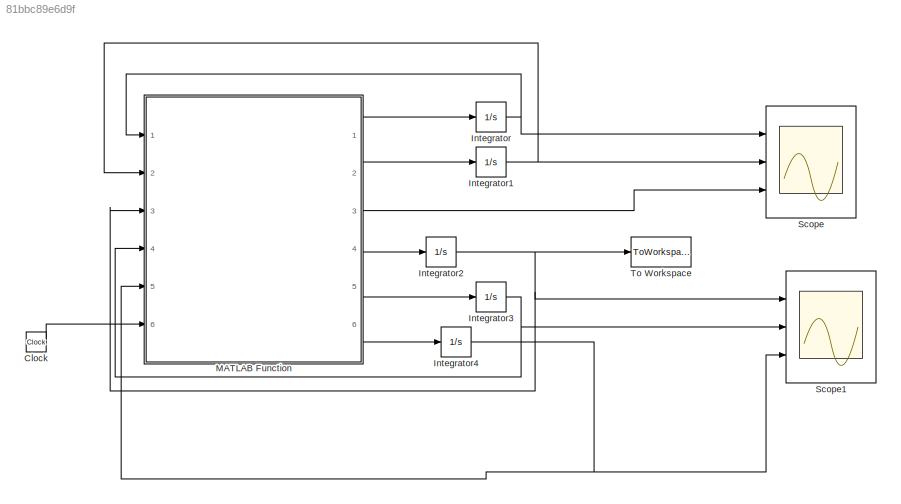
MODEL slx_81bbc89e6d9f
KIND model
CONFIG AbsTol = auto
CONFIG FixedStep = auto
CONFIG MaxStep = auto
CONFIG MinStep = auto
CONFIG RelTol = 1e-3
CONFIG SampleTimeConstraint = Unconstrained
CONFIG Solver = VariableStepAuto
CONFIG SolverMode = Auto
CONFIG SolverName = VariableStepAuto
CONFIG StartTime = 0.0
CONFIG StopTime = 100
BLOCK [Clock] Clock
BLOCK [Integrator] Integrator
  InitialCondition = [0;0]
  Ports = [1, 1]
BLOCK [Integrator] Integrator1
  InitialCondition = [0;0]
  Ports = [1, 1]
BLOCK [Integrator] Integrator2
  InitialCondition = [0 0;0 0]
  Ports = [1, 1]
BLOCK [Integrator] Integrator3
  InitialCondition = [0 0]
  Ports = [1, 1]
BLOCK [Integrator] Integrator4
  InitialCondition = [0 0]
  Ports = [1, 1]
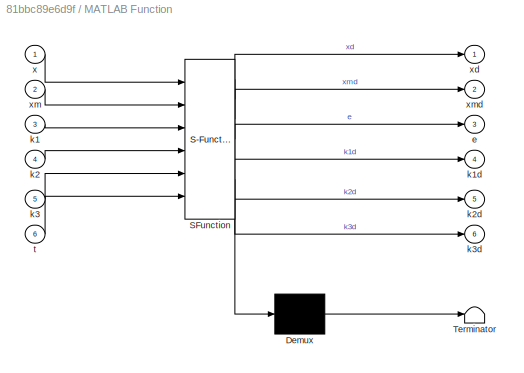
BLOCK [SubSystem] MATLAB Function
  ErrorFcn = Stateflow.Translate.translate
  PermitHierarchicalResolution = ExplicitOnly
  Ports = [6, 6]
  RequestExecContextInheritance = off
  SFBlockType = MATLAB Function
  TreatAsAtomicUnit = on
  Variant = off
BLOCK [Demux] MATLAB Function/ Demux 
  Outputs = 1
  Ports = [1, 1]
BLOCK [S-Function] MATLAB Function/ SFunction 
  EnableBusSupport = on
  FunctionName = sf_sfun
  PortCounts = [6 7]
  Ports = [6, 7]
  SFunctionDeploymentMode = off
  Tag = Stateflow S-Function MRAC_actuator_fault_tolerant 2
BLOCK [Terminator] MATLAB Function/ Terminator 
BLOCK [Outport] MATLAB Function/e
  IconDisplay = Port number
  Port = 3
BLOCK [Inport] MATLAB Function/k1
  IconDisplay = Port number
  Port = 3
BLOCK [Outport] MATLAB Function/k1d
  IconDisplay = Port number
  Port = 4
BLOCK [Inport] MATLAB Function/k2
  IconDisplay = Port number
  Port = 4
BLOCK [Outport] MATLAB Function/k2d
  IconDisplay = Port number
  Port = 5
BLOCK [Inport] MATLAB Function/k3
  IconDisplay = Port number
  Port = 5
BLOCK [Outport] MATLAB Function/k3d
  IconDisplay = Port number
  Port = 6
BLOCK [Inport] MATLAB Function/t
  IconDisplay = Port number
  Port = 6
BLOCK [Inport] MATLAB Function/x
  IconDisplay = Port number
BLOCK [Outport] MATLAB Function/xd
  IconDisplay = Port number
BLOCK [Inport] MATLAB Function/xm
  IconDisplay = Port number
  Port = 2
BLOCK [Outport] MATLAB Function/xmd
  IconDisplay = Port number
  Port = 2
BLOCK [Scope] Scope
  NumInputPorts = 3
  Ports = [3]
  ScopeSpecificationString = Simulink.scopes.TimeScopeBlockCfg('CurrentConfiguration', extmgr.ConfigurationSet(extmgr.Configuration('Core','General UI',true),extmgr.Configuration('Core','Source UI',true),extmgr.Configuration('Sources','WiredSimulink',true,'SampleTime','0.01'),extmgr.Configuration('Visuals','Time Domain',true,'SerializedDisplays',{struct('MinYLimReal','-0.237','MaxYLimReal','2.13298','YLabelReal','','MinYLimMa...<+2751ch>
BLOCK [Scope] Scope1
  NumInputPorts = 3
  Ports = [3]
  ScopeSpecificationString = Simulink.scopes.TimeScopeBlockCfg('CurrentConfiguration', extmgr.ConfigurationSet(extmgr.Configuration('Core','General UI',true),extmgr.Configuration('Core','Source UI',true),extmgr.Configuration('Sources','WiredSimulink',true,'SampleTime','0.01','DataLoggingVariableName','ScopeData1'),extmgr.Configuration('Visuals','Time Domain',true,'SerializedDisplays',{struct('MinYLimReal','-0.19433','MaxYLimR...<+2816ch>
BLOCK [ToWorkspace] To Workspace
  FixptAsFi = on
  MaxDataPoints = inf
  Ports = [1]
  SampleTime = -1
  Save2DSignal = 3-D array (concatenate along third dimension)
  SaveFormat = Timeseries
  VariableName = k1
LINE Clock:1 -> MATLAB Function:6
NET Integrator1:1 -> MATLAB Function:2, Scope:2
NET Integrator2:1 -> MATLAB Function:3, Scope1:1, To Workspace:1
NET Integrator3:1 -> MATLAB Function:4, Scope1:2
NET Integrator4:1 -> MATLAB Function:5, Scope1:3
NET Integrator:1 -> MATLAB Function:1, Scope:1
LINE MATLAB Function:1 -> Integrator:1
LINE MATLAB Function:2 -> Integrator1:1
LINE MATLAB Function:3 -> Scope:3
LINE MATLAB Function:4 -> Integrator2:1
LINE MATLAB Function:5 -> Integrator3:1
LINE MATLAB Function:6 -> Integrator4:1
note: NET lines group one-source signal fan-out (src -> all destinations, sorted); 1:1 wires keep LINE
CHART MATLAB Function states=1 transitions=1
  STATE_LABEL 'eML_blk_kernel()'
  STATE_LABEL "SCRIPT:\nfunction [xd,xmd,e,k1d,k2d,k3d] = fcn(x,xm,k1,k2,k3,t)\n\nif(t<40)\n     sigma=diag([0,0]);\nelse\n     sigma=diag([1,0]);\nend\n    \ne=x-xm;\nr=(1-exp(-t));\n\n% Controller\n%sigma=diag([0,0]);\nv=k1'*x+k2*r+k3;\nu_bar1=0;\nu_bar2=0;\nu_bar=[u_bar1; u_bar2];\nu=v+sigma*(u_bar-v);\n\n%system model(which is unknown in real cases, we only have information about the state only which is measurable)\nA=[-1 1; 0 -...<+831ch>"
